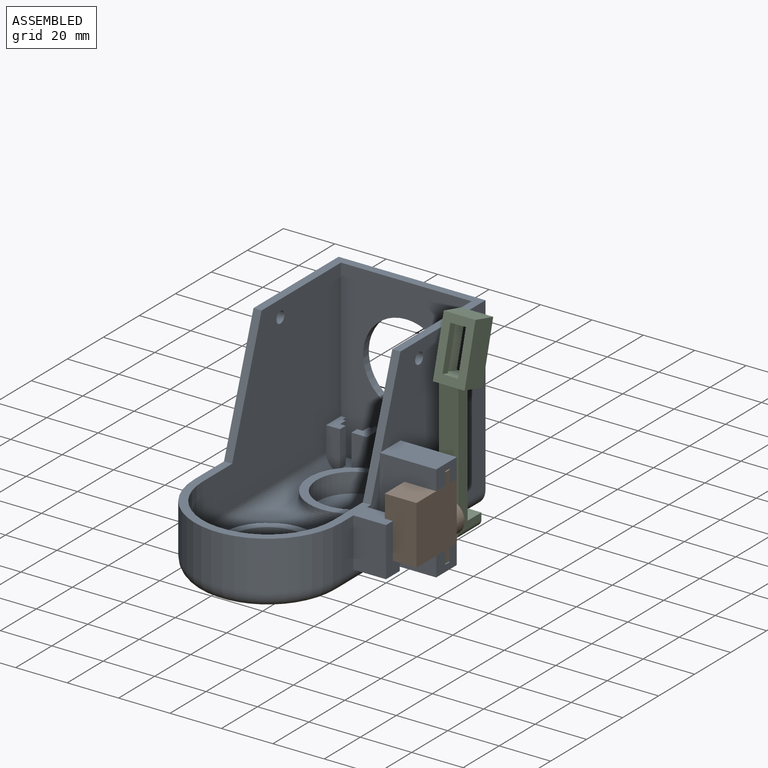
[diagram: assembled view]
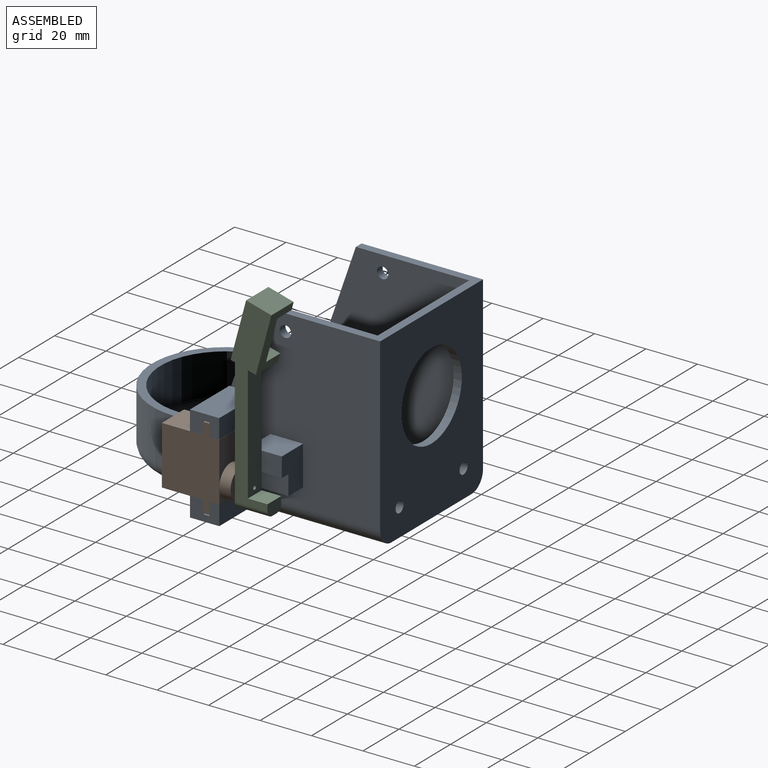
[diagram: assembled view, second angle]
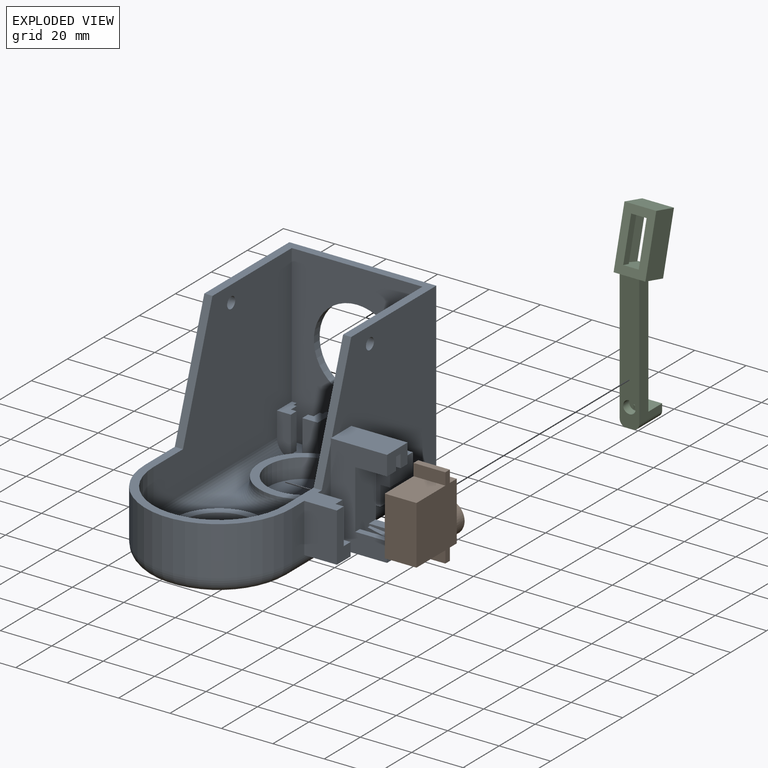
[diagram: exploded view]
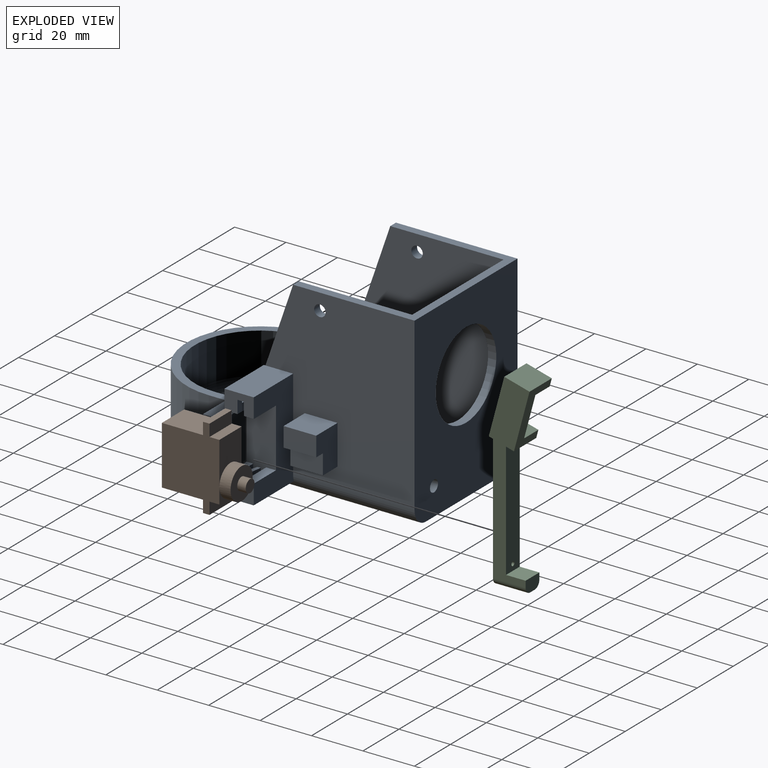
[diagram: exploded view, second angle]
ASSEMBLY  parts=3 mates=2
PART A: 116 faces, bbox 81.4x111x73.1 mm
  f0: plane 19.05x6.63mm, normal (1,0,0), area 126.3mm2, adj f1,f11,f15,f107
  f1: cylinder r=6.35mm len=80.01mm, axis (0,1,0), area 768.3mm2, adj f0,f3,f4,f13,f16,f68,f74,f75
  f2: plane 2.54x2.03mm, normal (-1,0,0), area 5.2mm2, adj f80,f88,f99,f100
  f3: plane 33.56x7.12mm, normal (1,0,0), area 171.9mm2, adj f1,f11,f61,f75,f103
  f4: plane 66.68x57.99mm, normal (1,0,0), area 3107.2mm2, adj f1,f13,f56,f58,f61,f74,f95,f109
  f5: plane 5.08x2.54mm, normal (0,1,0), area 12.9mm2, adj f84,f85,f87,f89,f94
  f6: plane 7.74x6.67mm, normal (0,0,1), area 22mm2, adj f47,f64,f67
  f7: plane 19.05x19.05mm, normal (0,0,1), area 109.3mm2, adj f64,f65,f67
  f8: plane 19.05x19.05mm, normal (0,0,1), area 109.3mm2, adj f63,f64,f65
  f9: plane 7.74x6.67mm, normal (0,0,1), area 22mm2, adj f52,f63,f64
  f10: plane 2.86x1.04mm, normal (0,0,1), area 1.4mm2, adj f32,f62,f64
  f11: plane 69.85x44.96mm, normal (0,0,1), area 457.9mm2, adj f0,f3,f14,f15,f17,f18,f19,f60
  f12: plane 67.95x50.8mm, normal (0,-1,0), area 2322.1mm2, adj f17,f18,f24,f25,f26,f27,f28,f29
  f13: plane 73.03x57.15mm, normal (0,1,0), area 3235.4mm2, adj f1,f4,f14,f16,f54,f55,f56,f57
  f14: plane 80.01x66.68mm, normal (-1,0,0), area 4148.8mm2, adj f11,f13,f15,f56,f59,f60,f69
  f15: cylinder r=28.57mm len=57.15mm, axis (0,0,-1), area 1710.1mm2, adj f0,f11,f14,f68
  f16: plane 102.24x44.45mm, normal (0,0,-1), area 4332.3mm2, adj f1,f13,f68,f69
  f17: plane 76.84x63.5mm, normal (1,0,0), area 3614.5mm2, adj f11,f12,f19,f28,f47,f56,f59,f60
  f18: plane 76.84x63.5mm, normal (-1,0,0), area 3614.5mm2, adj f11,f12,f19,f33,f52,f56,f58,f61
  f19: cylinder r=25.4mm len=50.8mm, axis (0,0,-1), area 1266.8mm2, adj f11,f17,f18,f66
  f20: plane 2.86x1.04mm, normal (0,0,1), area 1.4mm2, adj f29,f62,f64
  f21: cylinder r=14.29mm len=28.58mm, axis (0,0,-1), area 570mm2, adj f22,f23
  f22: plane 34.93x34.93mm, normal (0,0,1), area 316.7mm2, adj f21,f65
  f23: plane 28.58x28.58mm, normal (0,0,1), area 641.3mm2, adj f21
  f24: plane 8.26x6.03mm, normal (0,0,1), area 36.2mm2, adj f12,f25,f29,f36,f38,f44,f45,f47
  f25: plane 13.97x1.78mm, normal (-1,0,0), area 24.8mm2, adj f12,f24,f26,f36
  f26: plane 11.43x8.26mm, normal (0,0,1), area 63.8mm2, adj f12,f25,f27,f36,f37,f38,f39,f44
  f27: plane 13.97x1.78mm, normal (1,0,0), area 24.8mm2, adj f12,f26,f28,f39
  f28: plane 8.26x5.4mm, normal (0,0,1), area 31mm2, adj f12,f17,f27,f37,f39,f46,f47,f48
  f29: plane 15.88x8.26mm, normal (1,0,0), area 122.4mm2, adj f12,f20,f24,f47,f62,f64
  f30: plane 13.97x1.78mm, normal (1,0,0), area 24.8mm2, adj f12,f31,f35,f43
  f31: plane 8.26x6.03mm, normal (0,0,1), area 36.2mm2, adj f12,f30,f32,f42,f43,f51,f52,f53
  f32: plane 15.88x8.26mm, normal (-1,0,0), area 122.4mm2, adj f10,f12,f31,f52,f62,f64
  f33: plane 8.26x5.4mm, normal (0,0,1), area 31mm2, adj f12,f18,f34,f40,f41,f49,f50,f52
  f34: plane 13.97x1.78mm, normal (-1,0,0), area 24.8mm2, adj f12,f33,f35,f40
  f35: plane 11.43x8.26mm, normal (0,0,1), area 63.8mm2, adj f12,f30,f34,f40,f41,f42,f43,f49
  f36: plane 13.97x1.27mm, normal (0,1,0), area 17.7mm2, adj f24,f25,f26,f38
  f37: plane 13.97x3.3mm, normal (1,0,0), area 46.1mm2, adj f26,f28,f39,f48
  f38: plane 13.97x3.3mm, normal (-1,0,0), area 46.1mm2, adj f24,f26,f36,f44
  f39: plane 13.97x1.27mm, normal (0,1,0), area 17.7mm2, adj f26,f27,f28,f37
  f40: plane 13.97x1.27mm, normal (0,1,0), area 17.7mm2, adj f33,f34,f35,f41
  f41: plane 13.97x3.3mm, normal (-1,0,0), area 46.1mm2, adj f33,f35,f40,f49
  f42: plane 13.97x3.3mm, normal (1,0,0), area 46.1mm2, adj f31,f35,f43,f53
  f43: plane 13.97x1.27mm, normal (0,1,0), area 17.7mm2, adj f30,f31,f35,f42
  f44: plane 13.97x2.22mm, normal (0,1,0), area 31mm2, adj f24,f26,f38,f45
  f45: plane 13.97x3.18mm, normal (-1,0,0), area 44.4mm2, adj f24,f26,f44,f47
  f46: plane 13.97x3.18mm, normal (1,0,0), area 44.4mm2, adj f26,f28,f47,f48
  f47: plane 15.91x15.91mm, normal (0,-1,0), area 181.2mm2, adj f6,f17,f24,f26,f28,f29,f45,f46
  f48: plane 13.97x2.22mm, normal (0,1,0), area 31mm2, adj f26,f28,f37,f46
  f49: plane 13.97x2.22mm, normal (0,1,0), area 31mm2, adj f33,f35,f41,f50
  f50: plane 13.97x3.18mm, normal (-1,0,0), area 44.4mm2, adj f33,f35,f49,f52
  f51: plane 13.97x3.18mm, normal (1,0,0), area 44.4mm2, adj f31,f35,f52,f53
  f52: plane 15.91x15.91mm, normal (0,-1,0), area 181.2mm2, adj f9,f18,f31,f32,f33,f35,f50,f51
  f53: plane 13.97x2.22mm, normal (0,1,0), area 31mm2, adj f31,f35,f42,f51
  f54: cylinder r=2.22mm len=4.45mm, axis (0,-1,0), area 44.3mm2, adj f12,f13
  f55: cylinder r=2.22mm len=4.45mm, axis (0,-1,0), area 44.3mm2, adj f12,f13
  f56: plane 57.15x47.24mm, normal (0,0,1), area 461.3mm2, adj f4,f12,f13,f14,f17,f18,f60,f61
  f57: cylinder r=16.83mm len=33.66mm, axis (0,-1,0), area 335.7mm2, adj f12,f13
  f58: cylinder r=2.22mm len=4.45mm, axis (-1,0,0), area 44.3mm2, adj f4,f18
  f59: cylinder r=2.22mm len=4.45mm, axis (-1,0,0), area 44.3mm2, adj f14,f17
  f60: plane 47.63x16.38mm, normal (0,-0.95,0.33), area 159.9mm2, adj f11,f14,f17,f56
  f61: plane 47.63x16.38mm, normal (0,-0.95,0.33), area 159.9mm2, adj f3,f4,f11,f18,f56,f93
  f62: cylinder r=6.35mm len=19.05mm, axis (1,0,0), area 185.8mm2, adj f10,f12,f20,f29,f32,f64
  f63: cylinder r=6.35mm len=68.58mm, axis (0,-1,0), area 614.9mm2, adj f8,f9,f18,f52,f64,f65,f66
  f64: torus R=23.81mm, axis (0,0,1), area 1136.9mm2, adj f6,f7,f8,f9,f10,f20,f29,f32
  f65: torus R=23.81mm, axis (0,0,1), area 1017.5mm2, adj f7,f8,f22,f63,f66,f67
  f66: torus R=19.05mm, axis (0,0,1), area 568.3mm2, adj f19,f63,f65,f67
  f67: cylinder r=6.35mm len=68.58mm, axis (0,1,0), area 614.9mm2, adj f6,f7,f17,f47,f64,f65,f66
  f68: torus R=22.23mm, axis (0,0,1), area 823.1mm2, adj f1,f15,f16,f69
  f69: cylinder r=6.35mm len=80.01mm, axis (0,-1,0), area 798.1mm2, adj f13,f14,f16,f68
  f70: cylinder r=17.46mm len=34.93mm, axis (0,0,-1), area 139.3mm2, adj f64,f71
  f71: plane 34.93x34.93mm, normal (0,0,1), area 316.7mm2, adj f70,f73
  f72: plane 28.58x28.58mm, normal (0,0,1), area 641.3mm2, adj f73
  f73: cylinder r=14.29mm len=28.58mm, axis (0,0,-1), area 684.1mm2, adj f71,f72
  f74: plane 37.97x22.41mm, normal (0,1,0), area 550.5mm2, adj f1,f4,f76,f77,f79,f83,f84,f95
  f75: plane 37.97x22.41mm, normal (0,-1,0), area 550.5mm2, adj f1,f3,f76,f79,f81,f84,f85,f93
  f76: plane 32.89x11.39mm, normal (1,0,0), area 310.2mm2, adj f74,f75,f77,f78,f81,f82,f83,f85
  f77: plane 12.36x3.81mm, normal (0,0,1), area 47.1mm2, adj f74,f76,f78,f79
  f78: plane 12.36x5.08mm, normal (0,-1,0), area 62.8mm2, adj f76,f77,f79,f100
  f79: plane 11.39x7.62mm, normal (1,0,0), area 74.1mm2, adj f74,f75,f77,f78,f80,f81,f100,f101
  f80: plane 5.08x2.54mm, normal (0,1,0), area 12.9mm2, adj f2,f79,f81,f96,f100
  f81: plane 12.36x6.35mm, normal (0,0,1), area 54.1mm2, adj f75,f76,f79,f80,f88,f96,f97,f98
  f82: plane 12.36x5.08mm, normal (0,-1,0), area 62.8mm2, adj f76,f83,f84,f94
  f83: plane 12.36x3.81mm, normal (0,0,-1), area 47.1mm2, adj f74,f76,f82,f84
  f84: plane 11.39x7.62mm, normal (1,0,0), area 74.1mm2, adj f5,f74,f75,f82,f83,f85,f94,f95
  f85: plane 12.36x6.35mm, normal (0,0,-1), area 54.1mm2, adj f5,f75,f76,f84,f86,f89,f90,f91
  f86: plane 9.82x5.08mm, normal (0,1,0), area 49.9mm2, adj f76,f85,f87,f90,f94
  f87: plane 2.54x2.03mm, normal (-1,0,0), area 5.2mm2, adj f5,f86,f92,f94
  f88: plane 9.82x5.08mm, normal (0,1,0), area 49.9mm2, adj f2,f76,f81,f98,f100
  f89: plane 8.55x3.05mm, normal (0.15,0.99,0), area 26.3mm2, adj f5,f85,f91,f92
  f90: plane 8.55x3.05mm, normal (-0.28,-0.96,0), area 27.2mm2, adj f85,f86,f91,f92
  f91: plane 3.05x1.27mm, normal (-1,0,0), area 3.9mm2, adj f85,f89,f90,f92
  f92: plane 8.55x3.81mm, normal (0,0,1), area 16.3mm2, adj f87,f89,f90,f91
  f93: plane 1.87x0.64mm, normal (-1,0,0), area 0.6mm2, adj f61,f75,f95
  f94: plane 12.36x5.04mm, normal (0,0,-1), area 55.9mm2, adj f5,f76,f82,f84,f86,f87
  f95: plane 21.88x11.39mm, normal (0,0,1), area 249.3mm2, adj f4,f74,f75,f84,f93
  f96: plane 8.55x3.05mm, normal (0.15,0.99,0), area 26.3mm2, adj f80,f81,f97,f99
  f97: plane 3.05x1.27mm, normal (-1,0,0), area 3.9mm2, adj f81,f96,f98,f99
  f98: plane 8.55x3.05mm, normal (-0.28,-0.96,0), area 27.2mm2, adj f81,f88,f97,f99
  f99: plane 8.55x3.81mm, normal (0,0,-1), area 16.3mm2, adj f2,f96,f97,f98
  f100: plane 12.36x5.04mm, normal (0,0,1), area 55.9mm2, adj f2,f76,f78,f79,f80,f88
  f101: plane 22.41x11.39mm, normal (0,0,-1), area 255.3mm2, adj f1,f74,f75,f79
  f102: plane 13.97x3.81mm, normal (1,0,0), area 53.2mm2, adj f11,f103,f104,f105
  f103: plane 19.05x12.7mm, normal (0,1,0), area 197.6mm2, adj f3,f11,f102,f105,f106,f108
  f104: plane 13.97x3.18mm, normal (0,1,0), area 44.4mm2, adj f11,f102,f105,f108
  f105: plane 3.81x3.18mm, normal (0,0,1), area 12.1mm2, adj f102,f103,f104,f108
  f106: plane 12.7x7.62mm, normal (0,0,-1), area 96.8mm2, adj f1,f103,f107,f108
  f107: plane 19.05x12.7mm, normal (0,-1,0), area 241.9mm2, adj f0,f11,f106,f108
  f108: plane 19.05x7.62mm, normal (1,0,0), area 91.9mm2, adj f11,f103,f104,f105,f106,f107
  f109: plane 15.37x11.81mm, normal (0,-1,0), area 153mm2, adj f4,f110,f112,f113,f114,f115
  f110: plane 12.7x8.13mm, normal (0,0,-1), area 103.2mm2, adj f4,f109,f111,f112
  f111: plane 15.37x11.81mm, normal (0,1,0), area 153mm2, adj f4,f110,f112,f113,f114,f115
  f112: plane 12.7x7.75mm, normal (1,0,0), area 98.4mm2, adj f109,f110,f111,f113
  f113: plane 12.7x3.68mm, normal (0,0,-1), area 46.8mm2, adj f109,f111,f112,f115
  f114: plane 12.7x11.81mm, normal (0,0,1), area 150mm2, adj f4,f109,f111,f115
  f115: plane 12.7x7.62mm, normal (1,0,0), area 96.8mm2, adj f109,f111,f113,f114
PART B: 20 faces, bbox 32.1x12.4x30 mm
  f0: plane 6.18x6.18mm, normal (0,0,1), area 8.2mm2, adj f5,f6,f16
  f1: plane 16.54x12.36mm, normal (0,0,1), area 144.4mm2, adj f4,f6,f7,f16
  f2: plane 16.01x12.36mm, normal (-1,0,0), area 197.9mm2, adj f4,f6,f9,f14
  f3: plane 16.01x12.36mm, normal (1,0,0), area 197.9mm2, adj f4,f6,f9,f11
  f4: plane 32.07x22.38mm, normal (0,-1,0), area 531.8mm2, adj f1,f2,f3,f5,f7,f8,f9,f10
  f5: plane 12.36x3.86mm, normal (1,0,0), area 47.7mm2, adj f0,f4,f6,f8,f10
  f6: plane 32.07x22.38mm, normal (0,1,0), area 531.8mm2, adj f0,f1,f2,f3,f5,f7,f9,f10
  f7: plane 12.36x3.86mm, normal (-1,0,0), area 47.7mm2, adj f1,f4,f6,f13
  f8: plane 6.18x6.18mm, normal (0,0,1), area 8.2mm2, adj f4,f5,f16
  f9: plane 22.72x12.36mm, normal (0,0,-1), area 280.8mm2, adj f2,f3,f4,f6
  f10: plane 12.36x4.67mm, normal (0,0,1), area 57.8mm2, adj f4,f5,f6,f12
  f11: plane 12.36x4.67mm, normal (0,0,-1), area 57.8mm2, adj f3,f4,f6,f12
  f12: plane 12.36x2.5mm, normal (1,0,0), area 30.9mm2, adj f4,f6,f10,f11
  f13: plane 12.36x4.67mm, normal (0,0,1), area 57.8mm2, adj f4,f6,f7,f15
  f14: plane 12.36x4.67mm, normal (0,0,-1), area 57.8mm2, adj f2,f4,f6,f15
  f15: plane 12.36x2.5mm, normal (-1,0,0), area 30.9mm2, adj f4,f6,f13,f14
  f16: cylinder r=6.18mm len=12.36mm, axis (0,0,-1), area 168.6mm2, adj f0,f1,f8,f17
  f17: plane 12.36x12.36mm, normal (0,0,1), area 101.1mm2, adj f16,f18
  f18: cylinder r=2.45mm len=4.9mm, axis (0,0,-1), area 50.7mm2, adj f17,f19
  f19: plane 4.9x4.9mm, normal (0,0,1), area 18.9mm2, adj f18
PART C: 30 faces, bbox 12.4x75.9x15.9 mm
  f0: plane 15.21x4.08mm, normal (0,0.26,0.97), area 16mm2, adj f26,f27,f28,f29
  f1: plane 16.44x4.4mm, normal (0,0.26,0.97), area 33.8mm2, adj f2,f3,f5,f22,f27,f28,f29
  f2: plane 9.84x9.2mm, normal (0,0.97,-0.26), area 79.5mm2, adj f1,f4,f5,f6,f22,f23,f24,f25
  f3: plane 9.84x9.2mm, normal (0,-0.97,0.26), area 79.5mm2, adj f1,f4,f5,f6,f22,f23,f24,f25
  f4: plane 22.57x12.37mm, normal (0,0.26,0.97), area 154.2mm2, adj f2,f3,f19,f20,f21,f22,f25
  f5: plane 17.26x7.47mm, normal (1,0,0), area 54mm2, adj f1,f2,f3,f6,f26
  f6: plane 22.57x12.37mm, normal (0,-0.26,-0.97), area 186.6mm2, adj f2,f3,f5,f12,f19,f20,f21,f22
  f7: plane 46.9x7.62mm, normal (0,0,1), area 355.4mm2, adj f8,f9,f11,f15,f19
  f8: plane 50.8x12.7mm, normal (-1,0,0), area 274mm2, adj f7,f12,f15,f16,f18,f19
  f9: plane 50.8x12.7mm, normal (1,0,0), area 274mm2, adj f7,f12,f15,f16,f17,f19
  f10: plane 12.7x2.54mm, normal (0,1,0), area 32.3mm2, adj f12,f16,f17,f18
  f11: cylinder r=0.8mm len=1.79mm, axis (0,0,-1), area 9mm2, adj f7,f14
  f12: plane 53.34x7.62mm, normal (0,0,-1), area 384.8mm2, adj f6,f8,f9,f10,f13,f17,f18
  f13: cylinder r=2.45mm len=4.9mm, axis (0,0,-1), area 50.7mm2, adj f12,f14
  f14: plane 4.9x4.9mm, normal (0,0,-1), area 16.9mm2, adj f11,f13
  f15: plane 7.62x7.62mm, normal (0,-1,0), area 58.1mm2, adj f7,f8,f9,f16
  f16: plane 7.62x5.08mm, normal (0,0,1), area 35.9mm2, adj f8,f9,f10,f15,f17,f18
  f17: cylinder r=2.54mm len=12.7mm, axis (0,0,-1), area 50.7mm2, adj f9,f10,f12,f16
  f18: cylinder r=2.54mm len=12.7mm, axis (0,0,1), area 50.7mm2, adj f8,f10,f12,f16
  f19: plane 12.37x9.84mm, normal (0,0.97,-0.26), area 85.9mm2, adj f4,f6,f7,f8,f9,f20,f22
  f20: plane 25.21x15.89mm, normal (1,0,0), area 238mm2, adj f4,f6,f19,f21
  f21: plane 12.37x9.84mm, normal (0,-0.97,0.26), area 126mm2, adj f4,f6,f20,f22
  f22: plane 25.21x15.89mm, normal (-1,0,0), area 118.7mm2, adj f1,f2,f3,f4,f6,f19,f21
  f23: plane 18.25x11.18mm, normal (-1,0,0), area 119.3mm2, adj f2,f3,f6,f24
  f24: plane 16.44x4.4mm, normal (0,-0.26,-0.97), area 21.6mm2, adj f2,f3,f23,f25
  f25: plane 17.26x7.47mm, normal (-1,0,0), area 54mm2, adj f2,f3,f4,f24
  f26: plane 16.2x7.78mm, normal (0.99,-0.04,-0.16), area 61.2mm2, adj f0,f5,f28,f29
  f27: plane 16.2x7.78mm, normal (-0.97,0.06,0.22), area 62.1mm2, adj f0,f1,f28,f29
  f28: plane 3.7x1.92mm, normal (0,-0.97,0.26), area 4.4mm2, adj f0,f1,f26,f27
  f29: plane 3.7x1.92mm, normal (0,0.97,-0.26), area 4.4mm2, adj f0,f1,f26,f27
PLACE A t=(-52.07,-19.79,8)mm fixed
PLACE B rot(axis=(-0.58,0.58,0.58),120deg) t=(-7.79,1.84,30.79)mm
PLACE C rot(axis=(-1,0,0),90deg) t=(-7.79,17.37,25.61)mm
MATE revolute C.f11 <-> B.f18  axis (0,-1,0) through (-7.79,20.66,25.61)mm
MATE fastened B.f6 <-> A.f102  axis (-1,0,0) through (-13.97,-9.35,19.43)mm
